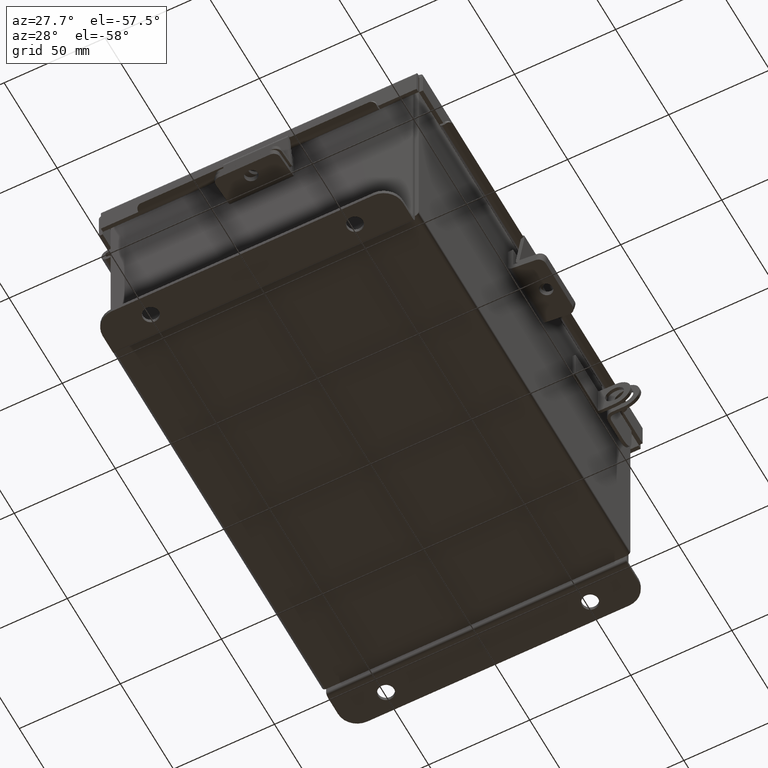
[diagram: clean part render]
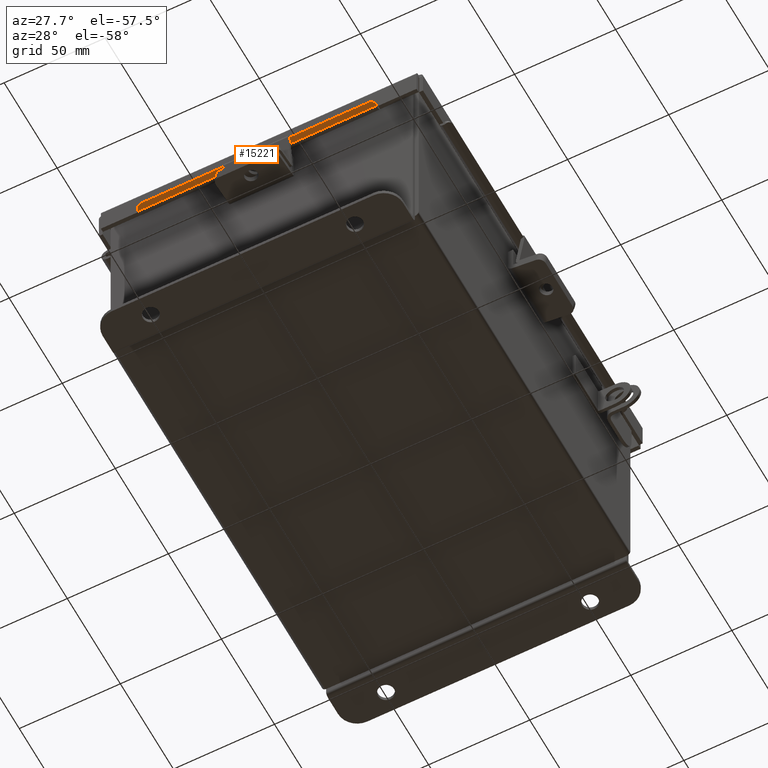
[diagram: same view with one face highlighted and labeled with its STEP entity id]
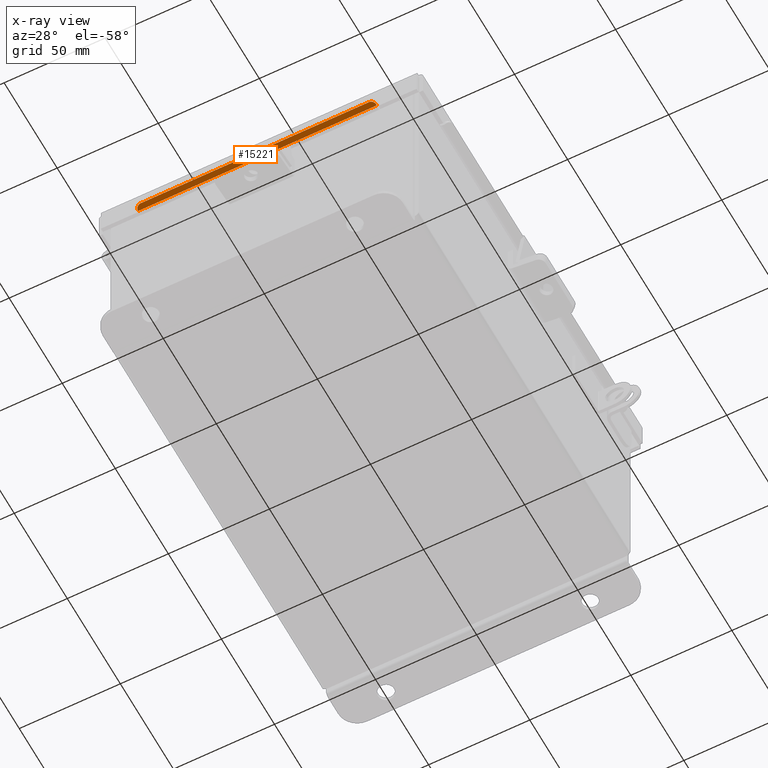
[diagram: x-ray of the same camera — body ghosted, the highlighted face saturated]
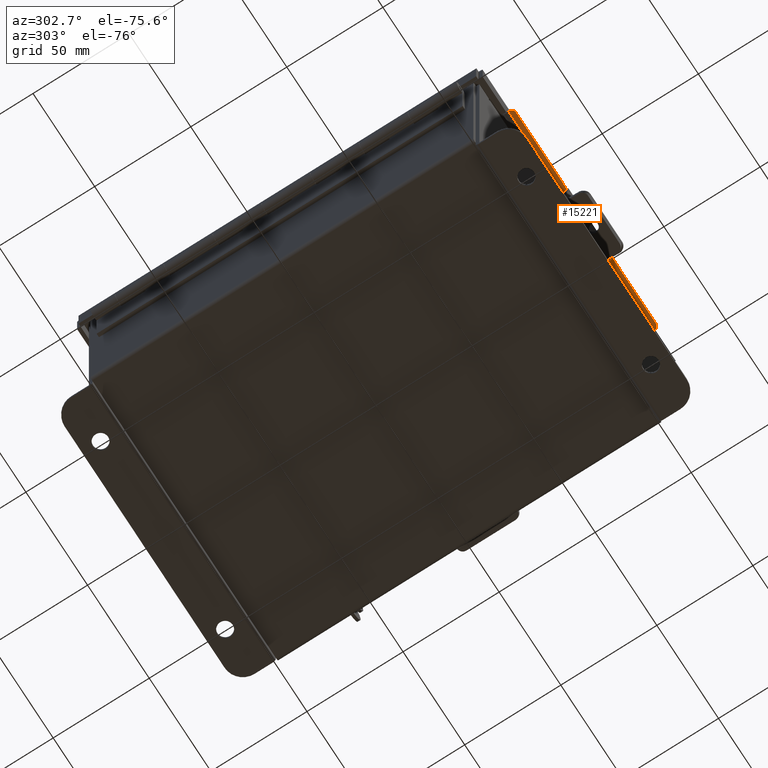
[diagram: same view with one face highlighted and labeled with its STEP entity id]
A machine part, auxiliary view. The second image highlights one B-rep face of the part: STEP entity #15221.
The next image is the same camera in x-ray: the body ghosted, the highlighted face saturated — about 0% of this face is hidden behind the body in this view.
A second angle (auxiliary view) of the same face is appended — the face is thin or edge-on in the first view.
In plain terms, the highlighted planar face has unit normal (-0, 0.5, 0.866).
Its self-contained STEP definition (entity closure, byte-faithful):
#7 = DIRECTION ( 'NONE',  ( -5.463695987328533500E-015, 0.8660254037844370400, 0.5000000000000028900 ) ) ;
#681 = CARTESIAN_POINT ( 'NONE',  ( -4.247169927649909300E-016, -4.207099999999999600, 0.5441978690286389800 ) ) ;
#838 = AXIS2_PLACEMENT_3D ( 'NONE', #10119, #13651, #6568 ) ;
#975 = CARTESIAN_POINT ( 'NONE',  ( 2.324478932188136100, -4.193599999999999100, 0.5519920976626973000 ) ) ;
#979 = VERTEX_POINT ( 'NONE', #14660 ) ;
#1266 = CIRCLE ( 'NONE', #10241, 0.09999999999999986700 ) ;
#1429 = CARTESIAN_POINT ( 'NONE',  ( 2.324478932188134300, -4.298056350946109400, 0.4916841953253947600 ) ) ;
#1839 = EDGE_CURVE ( 'NONE', #3929, #9769, #10481, .T. ) ;
#2923 = CARTESIAN_POINT ( 'NONE',  ( -2.324478932188134300, -4.211453810567665100, 0.5416841953253950200 ) ) ;
#3181 = CARTESIAN_POINT ( 'NONE',  ( -2.324478932188136500, -4.298056350946109400, 0.4916841953253947600 ) ) ;
#3607 = CARTESIAN_POINT ( 'NONE',  ( 2.324478932188136100, -4.211453810567665100, 0.5416841953253950200 ) ) ;
#3929 = VERTEX_POINT ( 'NONE', #6322 ) ;
#5694 = VECTOR ( 'NONE', #8556, 39.37007874015748100 ) ;
#5928 = EDGE_CURVE ( 'NONE', #6093, #9769, #11106, .T. ) ;
#6093 = VERTEX_POINT ( 'NONE', #3607 ) ;
#6322 = CARTESIAN_POINT ( 'NONE',  ( -2.324478932188134300, -4.207099999999999600, 0.5441978690286384300 ) ) ;
#6550 = CARTESIAN_POINT ( 'NONE',  ( 2.224478932188136400, -4.211453810567666900, 0.5416841953253955800 ) ) ;
#6568 = DIRECTION ( 'NONE',  ( 6.310887241768094400E-030, 0.8660254037844373800, 0.5000000000000023300 ) ) ;
#7134 = DIRECTION ( 'NONE',  ( 4.604011513242156500E-017, -0.5000000000000023300, 0.8660254037844372600 ) ) ;
#7183 = ORIENTED_EDGE ( 'NONE', *, *, #8398, .T. ) ;
#7758 = DIRECTION ( 'NONE',  ( 0.0000000000000000000, 0.8660254037844370400, 0.5000000000000028900 ) ) ;
#7843 = VECTOR ( 'NONE', #12673, 39.37007874015748900 ) ;
#8203 = LINE ( 'NONE', #3181, #7843 ) ;
#8255 = CARTESIAN_POINT ( 'NONE',  ( 2.224478932188134200, -4.298056350946109400, 0.4916841953253947600 ) ) ;
#8398 = EDGE_CURVE ( 'NONE', #3929, #15185, #8203, .T. ) ;
#8556 = DIRECTION ( 'NONE',  ( 1.000000000000000000, 4.169503774864922100E-033, -1.469064720180400100E-017 ) ) ;
#8608 = EDGE_CURVE ( 'NONE', #15185, #979, #15047, .T. ) ;
#8846 = LINE ( 'NONE', #1429, #5694 ) ;
#8896 = ORIENTED_EDGE ( 'NONE', *, *, #11966, .T. ) ;
#8902 = PLANE ( 'NONE',  #838 ) ;
#9662 = ORIENTED_EDGE ( 'NONE', *, *, #8608, .T. ) ;
#9706 = EDGE_LOOP ( 'NONE', ( #8896, #13086, #15356, #12454, #7183, #9662 ) ) ;
#9769 = VERTEX_POINT ( 'NONE', #13909 ) ;
#10119 = CARTESIAN_POINT ( 'NONE',  ( 1.237868622129119300E-016, -1.287419589632089200, 2.229876139902241800 ) ) ;
#10241 = AXIS2_PLACEMENT_3D ( 'NONE', #6550, #14830, #7758 ) ;
#10317 = EDGE_CURVE ( 'NONE', #11235, #6093, #1266, .T. ) ;
#10414 = AXIS2_PLACEMENT_3D ( 'NONE', #14232, #7134, #7 ) ;
#10481 = LINE ( 'NONE', #681, #13227 ) ;
#10502 = DIRECTION ( 'NONE',  ( 0.0000000000000000000, 0.8660254037844379300, 0.5000000000000012200 ) ) ;
#11106 = LINE ( 'NONE', #975, #14240 ) ;
#11144 = FACE_OUTER_BOUND ( 'NONE', #9706, .T. ) ;
#11235 = VERTEX_POINT ( 'NONE', #8255 ) ;
#11966 = EDGE_CURVE ( 'NONE', #979, #11235, #8846, .T. ) ;
#12454 = ORIENTED_EDGE ( 'NONE', *, *, #1839, .F. ) ;
#12505 = DIRECTION ( 'NONE',  ( 1.000000000000000000, -1.160137203438067600E-016, -1.201430984006364300E-016 ) ) ;
#12673 = DIRECTION ( 'NONE',  ( -6.310887241768094400E-030, -0.8660254037844373800, -0.5000000000000023300 ) ) ;
#13086 = ORIENTED_EDGE ( 'NONE', *, *, #10317, .T. ) ;
#13227 = VECTOR ( 'NONE', #12505, 39.37007874015748100 ) ;
#13651 = DIRECTION ( 'NONE',  ( -4.604011513242156500E-017, 0.5000000000000023300, -0.8660254037844373800 ) ) ;
#13909 = CARTESIAN_POINT ( 'NONE',  ( 2.324478932188136100, -4.207100000000000500, 0.5441978690286367600 ) ) ;
#14232 = CARTESIAN_POINT ( 'NONE',  ( -2.224478932188134600, -4.211453810567666900, 0.5416841953253961300 ) ) ;
#14240 = VECTOR ( 'NONE', #10502, 39.37007874015748100 ) ;
#14660 = CARTESIAN_POINT ( 'NONE',  ( -2.224478932188136900, -4.298056350946109400, 0.4916841953253947600 ) ) ;
#14830 = DIRECTION ( 'NONE',  ( 4.604011513242156500E-017, -0.5000000000000023300, 0.8660254037844372600 ) ) ;
#15047 = CIRCLE ( 'NONE', #10414, 0.09999999999999986700 ) ;
#15185 = VERTEX_POINT ( 'NONE', #2923 ) ;
#15221 = ADVANCED_FACE ( 'NONE', ( #11144 ), #8902, .F. ) ;
#15356 = ORIENTED_EDGE ( 'NONE', *, *, #5928, .T. ) ;